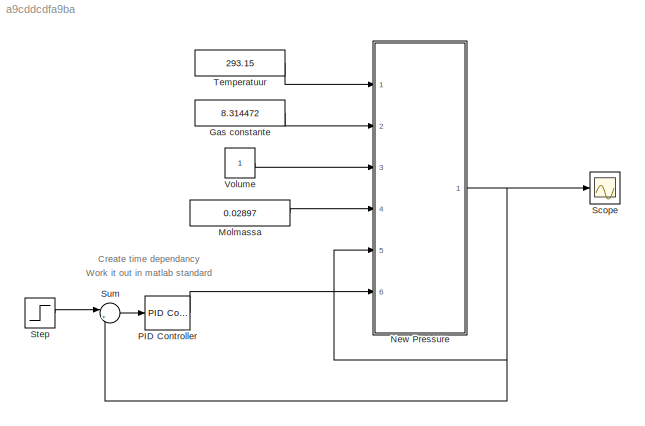
MODEL slx_a9cddcdfa9ba
KIND model
CONFIG AbsTol = auto
CONFIG EnableMultiTasking = on
CONFIG FixedStep = auto
CONFIG MaxStep = auto
CONFIG MinStep = auto
CONFIG RelTol = 1e-3
CONFIG SampleTimeConstraint = Unconstrained
CONFIG Solver = ode45
CONFIG SolverName = ode45
CONFIG StartTime = 0.0
CONFIG StopTime = 10.0
BLOCK [Constant] Gas constante 
  Value = 8.314472
BLOCK [Constant] Molmassa 
  Value = 0.02897
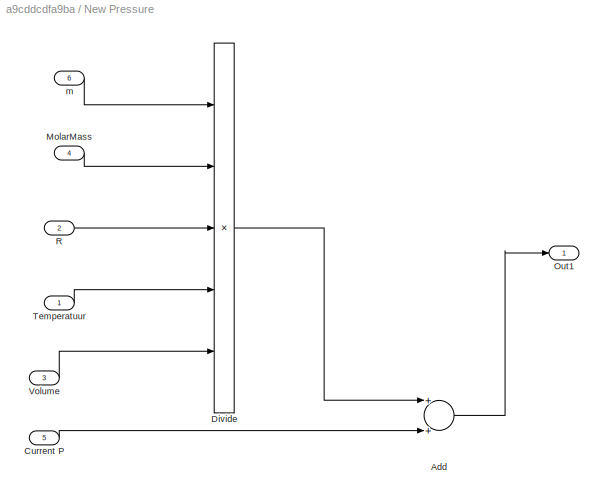
BLOCK [SubSystem] New Pressure
  Ports = [6, 1]
  RequestExecContextInheritance = off
BLOCK [Sum] New Pressure/Add
  InputSameDT = off
  OutDataTypeStr = Inherit: Inherit via internal rule
  Ports = [2, 1]
  SaturateOnIntegerOverflow = off
BLOCK [Inport] New Pressure/Current P
  IconDisplay = Port number
  Port = 5
BLOCK [Product] New Pressure/Divide
  InputSameDT = off
  Inputs = */**/
  OutDataTypeStr = Inherit: Inherit via internal rule
  Ports = [5, 1]
  RndMeth = Floor
  SaturateOnIntegerOverflow = off
BLOCK [Inport] New Pressure/MolarMass 
  IconDisplay = Port number
  Port = 4
BLOCK [Outport] New Pressure/Out1
  IconDisplay = Port number
BLOCK [Inport] New Pressure/R
  IconDisplay = Port number
  Port = 2
BLOCK [Inport] New Pressure/Temperatuur
  IconDisplay = Port number
BLOCK [Inport] New Pressure/Volume
  IconDisplay = Port number
  Port = 3
BLOCK [Inport] New Pressure/m
  IconDisplay = Port number
  Port = 6
BLOCK [Reference] PID Controller  REF=simulink/Continuous/PID Controller
  Ports = [1, 1]
  SourceBlock = simulink/Continuous/PID Controller
  SourceProductBaseCode = SL
  SourceProductName = Simulink
  SourceType = PID 1dof
BLOCK [Scope] Scope
  Floating = off
  NumInputPorts = 1
  Ports = [1]
  ScopeSpecificationString = Simulink.scopes.TimeScopeBlockCfg('CurrentConfiguration', extmgr.ConfigurationSet(extmgr.Configuration('Core','General UI',true),extmgr.Configuration('Core','Source UI',true),extmgr.Configuration('Sources','WiredSimulink',true,'DataLoggingLimitDataPoints',true,'DataLoggingSaveFormat','Array','DataLoggingDecimation','1','DataLoggingDecimateData',true),extmgr.Configuration('Visuals','Time Domain',tr...<+1668ch>
BLOCK [Step] Step
  After = 150000
  Before = 101300
  SampleTime = 0
BLOCK [Sum] Sum
  IconShape = round
  InputSameDT = off
  Inputs = |+-
  OutDataTypeStr = Inherit: Inherit via internal rule
  Ports = [2, 1]
  SaturateOnIntegerOverflow = off
BLOCK [Constant] Temperatuur
  Value = 293.15
BLOCK [Constant] Volume
ANNOTATION (root): Create time dependancy
ANNOTATION (root): Work it out in matlab standard
LINE Gas constante :1 -> New Pressure:2
LINE Molmassa :1 -> New Pressure:4
LINE New Pressure/Add:1 -> New Pressure/Out1:1
LINE New Pressure/Current P:1 -> New Pressure/Add:2
LINE New Pressure/Divide:1 -> New Pressure/Add:1
LINE New Pressure/MolarMass :1 -> New Pressure/Divide:2
LINE New Pressure/R:1 -> New Pressure/Divide:3
LINE New Pressure/Temperatuur:1 -> New Pressure/Divide:4
LINE New Pressure/Volume:1 -> New Pressure/Divide:5
LINE New Pressure/m:1 -> New Pressure/Divide:1
NET New Pressure:1 -> New Pressure:5, Scope:1, Sum:2
LINE PID Controller:1 -> New Pressure:6
LINE Step:1 -> Sum:1
LINE Sum:1 -> PID Controller:1
LINE Temperatuur:1 -> New Pressure:1
LINE Volume:1 -> New Pressure:3
note: NET lines group one-source signal fan-out (src -> all destinations, sorted); 1:1 wires keep LINE
